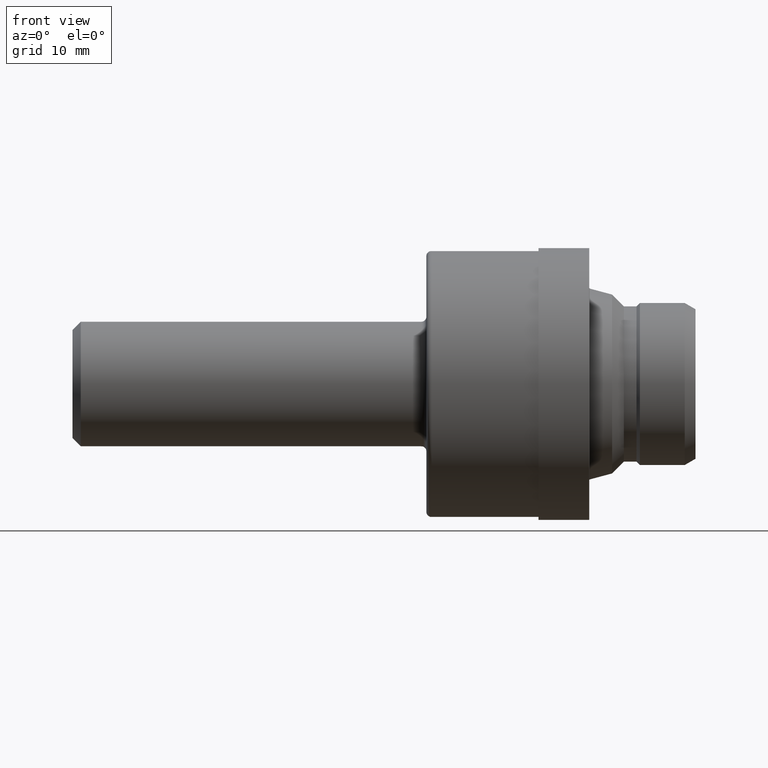
[diagram: clean part render]
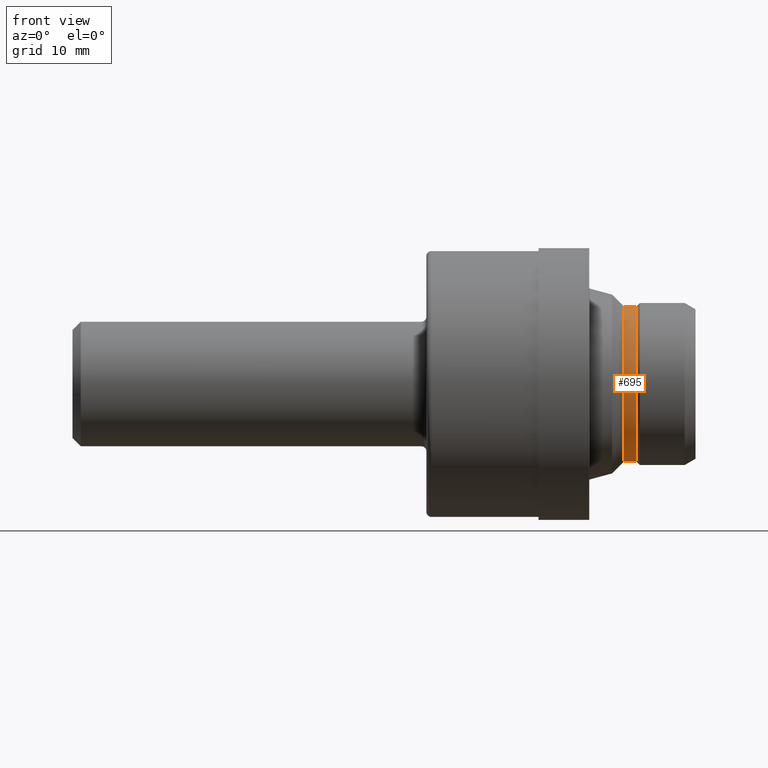
[diagram: same view with one face highlighted and labeled with its STEP entity id]
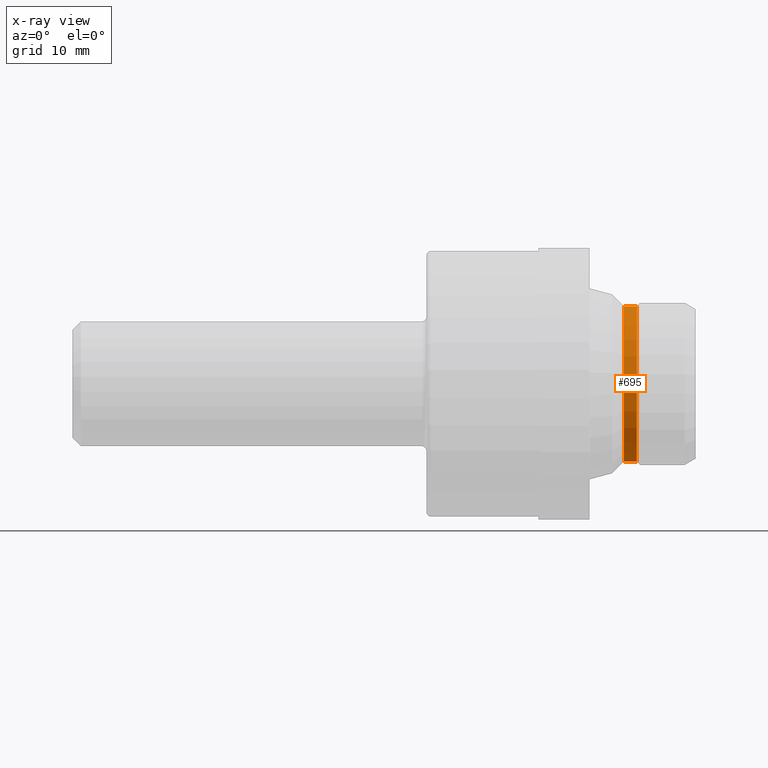
[diagram: x-ray of the same camera — body ghosted, the highlighted face saturated]
A machine part, front view. The second image highlights one B-rep face of the part: STEP entity #695.
The next image is the same camera in x-ray: the body ghosted, the highlighted face saturated — about 0% of this face is hidden behind the body in this view.
In plain terms, the highlighted cylindrical surface (partial cylindrical patch) has radius 11.8745 mm, axis along (-1, -0, -0).
Its self-contained STEP definition (entity closure, byte-faithful):
#1 = CARTESIAN_POINT ( 'NONE',  ( 3.318773011444506871, 5.725223786013876509E-17, -0.4675000000000000266 ) ) ;
#5 = DIRECTION ( 'NONE',  ( 0.0000000000000000000, 0.0000000000000000000, 1.000000000000000000 ) ) ;
#9 = DIRECTION ( 'NONE',  ( -1.000000000000000000, -0.0000000000000000000, -0.0000000000000000000 ) ) ;
#63 = CARTESIAN_POINT ( 'NONE',  ( 3.318773011444506871, 0.0000000000000000000, 0.0000000000000000000 ) ) ;
#71 = LINE ( 'NONE', #521, #572 ) ;
#76 = VERTEX_POINT ( 'NONE', #439 ) ;
#128 = DIRECTION ( 'NONE',  ( 0.0000000000000000000, 0.0000000000000000000, 1.000000000000000000 ) ) ;
#185 = DIRECTION ( 'NONE',  ( -1.000000000000000000, -0.0000000000000000000, -0.0000000000000000000 ) ) ;
#198 = AXIS2_PLACEMENT_3D ( 'NONE', #267, #216, #128 ) ;
#199 = AXIS2_PLACEMENT_3D ( 'NONE', #714, #715, #5 ) ;
#213 = EDGE_CURVE ( 'NONE', #388, #699, #71, .T. ) ;
#216 = DIRECTION ( 'NONE',  ( -1.000000000000000000, -0.0000000000000000000, -0.0000000000000000000 ) ) ;
#246 = CARTESIAN_POINT ( 'NONE',  ( 0.0000000000000000000, 0.0000000000000000000, 0.4675000000000000266 ) ) ;
#267 = CARTESIAN_POINT ( 'NONE',  ( 0.0000000000000000000, 0.0000000000000000000, 0.0000000000000000000 ) ) ;
#300 = ORIENTED_EDGE ( 'NONE', *, *, #213, .F. ) ;
#321 = CIRCLE ( 'NONE', #199, 0.4675000000000000266 ) ;
#337 = CARTESIAN_POINT ( 'NONE',  ( 3.318773011444506871, 0.0000000000000000000, 0.4675000000000000266 ) ) ;
#388 = VERTEX_POINT ( 'NONE', #559 ) ;
#408 = FACE_OUTER_BOUND ( 'NONE', #738, .T. ) ;
#414 = ORIENTED_EDGE ( 'NONE', *, *, #804, .F. ) ;
#416 = AXIS2_PLACEMENT_3D ( 'NONE', #63, #9, #602 ) ;
#427 = DIRECTION ( 'NONE',  ( -1.000000000000000000, -0.0000000000000000000, -0.0000000000000000000 ) ) ;
#439 = CARTESIAN_POINT ( 'NONE',  ( 3.395000000000000462, 5.847688465928611558E-17, 0.4675000000000000266 ) ) ;
#455 = CIRCLE ( 'NONE', #416, 0.4675000000000000266 ) ;
#521 = CARTESIAN_POINT ( 'NONE',  ( 0.0000000000000000000, 5.725223786013876509E-17, -0.4675000000000000266 ) ) ;
#559 = CARTESIAN_POINT ( 'NONE',  ( 3.395000000000000462, 0.0000000000000000000, -0.4675000000000000266 ) ) ;
#561 = CYLINDRICAL_SURFACE ( 'NONE', #198, 0.4675000000000000266 ) ;
#572 = VECTOR ( 'NONE', #185, 39.37007874015748143 ) ;
#591 = EDGE_CURVE ( 'NONE', #76, #652, #674, .T. ) ;
#602 = DIRECTION ( 'NONE',  ( 0.0000000000000000000, 0.0000000000000000000, 1.000000000000000000 ) ) ;
#627 = ORIENTED_EDGE ( 'NONE', *, *, #591, .T. ) ;
#649 = EDGE_CURVE ( 'NONE', #388, #76, #321, .T. ) ;
#652 = VERTEX_POINT ( 'NONE', #337 ) ;
#674 = LINE ( 'NONE', #246, #840 ) ;
#695 = ADVANCED_FACE ( 'NONE', ( #408 ), #561, .T. ) ;
#699 = VERTEX_POINT ( 'NONE', #1 ) ;
#714 = CARTESIAN_POINT ( 'NONE',  ( 3.395000000000000462, 0.0000000000000000000, 0.0000000000000000000 ) ) ;
#715 = DIRECTION ( 'NONE',  ( -1.000000000000000000, -0.0000000000000000000, -0.0000000000000000000 ) ) ;
#738 = EDGE_LOOP ( 'NONE', ( #300, #753, #627, #414 ) ) ;
#753 = ORIENTED_EDGE ( 'NONE', *, *, #649, .T. ) ;
#804 = EDGE_CURVE ( 'NONE', #699, #652, #455, .T. ) ;
#840 = VECTOR ( 'NONE', #427, 39.37007874015748143 ) ;